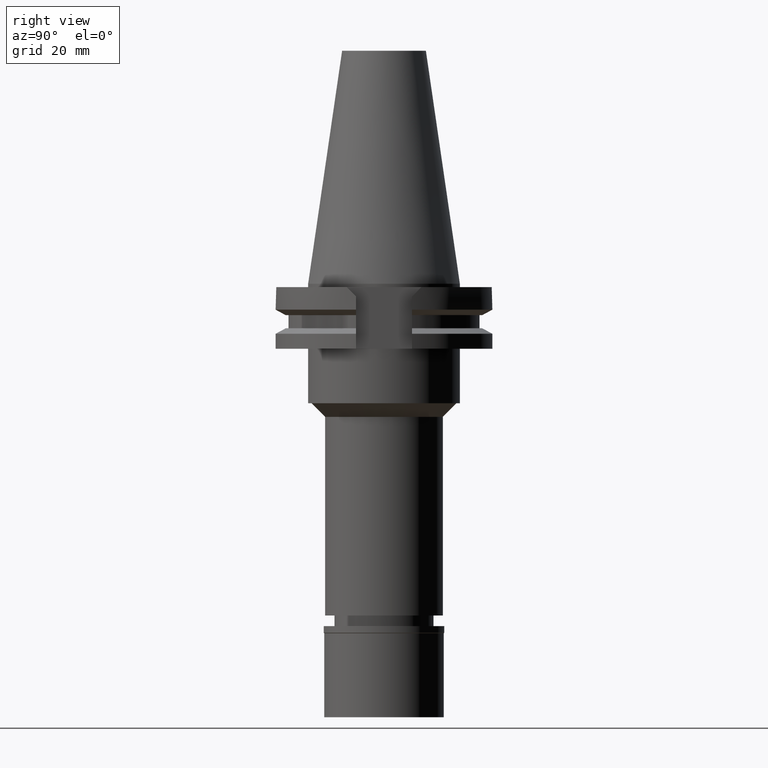
[diagram: clean part render]
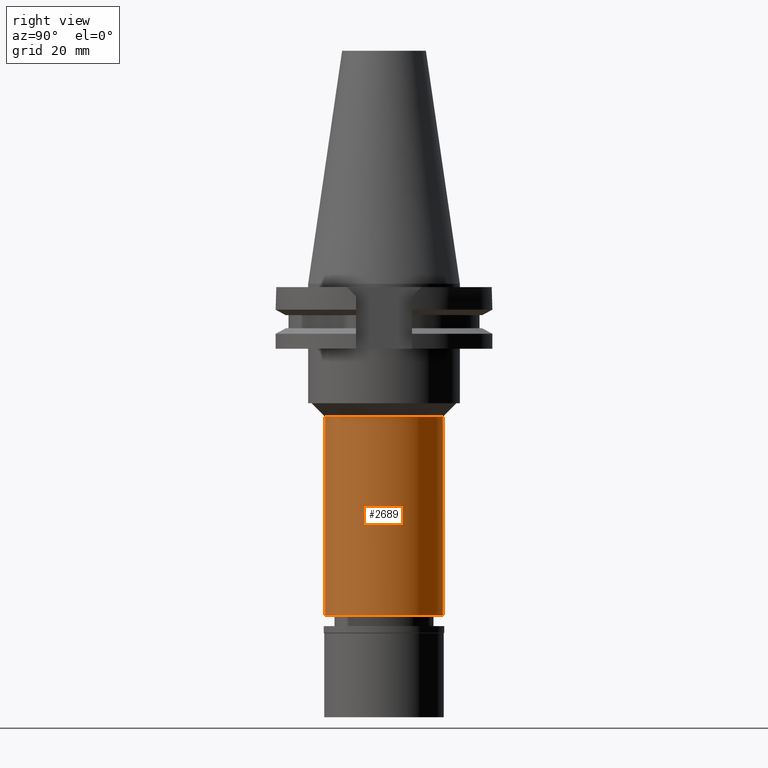
[diagram: same view with one face highlighted and labeled with its STEP entity id]
A machine part, right view. The second image highlights one B-rep face of the part: STEP entity #2689.
In plain terms, the highlighted cylindrical surface (partial cylindrical patch) has radius 17.25 mm, axis along (0, 0, -1).
Its self-contained STEP definition (entity closure, byte-faithful):
#58 = VERTEX_POINT ( 'NONE', #2870 ) ;
#100 = EDGE_CURVE ( 'NONE', #2118, #58, #1991, .T. ) ;
#205 = AXIS2_PLACEMENT_3D ( 'NONE', #898, #2440, #662 ) ;
#528 = CARTESIAN_POINT ( 'NONE',  ( 0.0000000000000000000, -17.25000000000000000, -97.19999999999998863 ) ) ;
#540 = DIRECTION ( 'NONE',  ( 0.0000000000000000000, 0.0000000000000000000, 1.000000000000000000 ) ) ;
#567 = VECTOR ( 'NONE', #2231, 1000.000000000000000 ) ;
#662 = DIRECTION ( 'NONE',  ( 0.0000000000000000000, 1.000000000000000000, 0.0000000000000000000 ) ) ;
#688 = CIRCLE ( 'NONE', #205, 17.25000000000000000 ) ;
#751 = CARTESIAN_POINT ( 'NONE',  ( 0.0000000000000000000, 17.25000000000000000, -39.00000000000000000 ) ) ;
#872 = DIRECTION ( 'NONE',  ( 0.0000000000000000000, 0.0000000000000000000, -1.000000000000000000 ) ) ;
#892 = ORIENTED_EDGE ( 'NONE', *, *, #2359, .T. ) ;
#898 = CARTESIAN_POINT ( 'NONE',  ( 0.0000000000000000000, 0.0000000000000000000, -39.00000000000000000 ) ) ;
#908 = CARTESIAN_POINT ( 'NONE',  ( 0.0000000000000000000, -17.25000000000000000, -39.00000000000000000 ) ) ;
#1010 = ORIENTED_EDGE ( 'NONE', *, *, #2170, .T. ) ;
#1060 = CYLINDRICAL_SURFACE ( 'NONE', #2024, 17.25000000000000000 ) ;
#1463 = EDGE_LOOP ( 'NONE', ( #892, #1684, #1010, #2642 ) ) ;
#1472 = CARTESIAN_POINT ( 'NONE',  ( 0.0000000000000000000, -17.25000000000000000, -39.00000000000000000 ) ) ;
#1493 = AXIS2_PLACEMENT_3D ( 'NONE', #3086, #540, #1554 ) ;
#1554 = DIRECTION ( 'NONE',  ( 0.0000000000000000000, -1.000000000000000000, 0.0000000000000000000 ) ) ;
#1580 = CARTESIAN_POINT ( 'NONE',  ( 0.0000000000000000000, 0.0000000000000000000, 77.46250000000000568 ) ) ;
#1684 = ORIENTED_EDGE ( 'NONE', *, *, #1897, .T. ) ;
#1743 = DIRECTION ( 'NONE',  ( 0.0000000000000000000, 0.0000000000000000000, -1.000000000000000000 ) ) ;
#1897 = EDGE_CURVE ( 'NONE', #2902, #2146, #2191, .T. ) ;
#1991 = LINE ( 'NONE', #2265, #567 ) ;
#2024 = AXIS2_PLACEMENT_3D ( 'NONE', #1580, #872, #2901 ) ;
#2082 = FACE_OUTER_BOUND ( 'NONE', #1463, .T. ) ;
#2118 = VERTEX_POINT ( 'NONE', #751 ) ;
#2146 = VERTEX_POINT ( 'NONE', #528 ) ;
#2170 = EDGE_CURVE ( 'NONE', #2146, #58, #2345, .T. ) ;
#2191 = LINE ( 'NONE', #1472, #2989 ) ;
#2231 = DIRECTION ( 'NONE',  ( 0.0000000000000000000, 0.0000000000000000000, -1.000000000000000000 ) ) ;
#2265 = CARTESIAN_POINT ( 'NONE',  ( 0.0000000000000000000, 17.25000000000000000, -39.00000000000000000 ) ) ;
#2345 = CIRCLE ( 'NONE', #1493, 17.25000000000000000 ) ;
#2359 = EDGE_CURVE ( 'NONE', #2118, #2902, #688, .T. ) ;
#2440 = DIRECTION ( 'NONE',  ( 0.0000000000000000000, 0.0000000000000000000, -1.000000000000000000 ) ) ;
#2642 = ORIENTED_EDGE ( 'NONE', *, *, #100, .F. ) ;
#2689 = ADVANCED_FACE ( 'NONE', ( #2082 ), #1060, .T. ) ;
#2870 = CARTESIAN_POINT ( 'NONE',  ( 0.0000000000000000000, 17.25000000000000000, -97.19999999999998863 ) ) ;
#2901 = DIRECTION ( 'NONE',  ( 0.0000000000000000000, -1.000000000000000000, 0.0000000000000000000 ) ) ;
#2902 = VERTEX_POINT ( 'NONE', #908 ) ;
#2989 = VECTOR ( 'NONE', #1743, 1000.000000000000000 ) ;
#3086 = CARTESIAN_POINT ( 'NONE',  ( 0.0000000000000000000, 0.0000000000000000000, -97.19999999999998863 ) ) ;